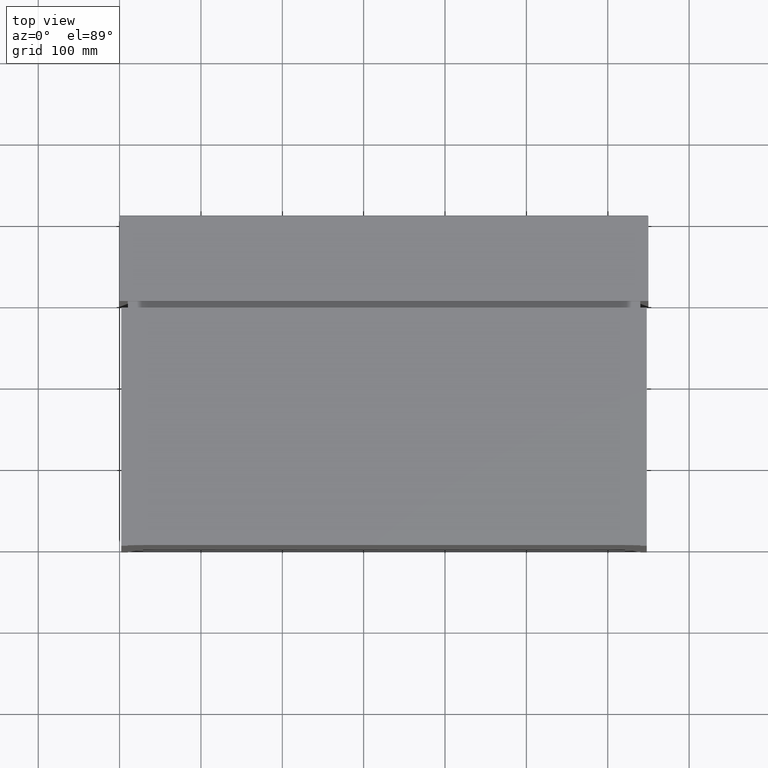
[diagram: clean part render]
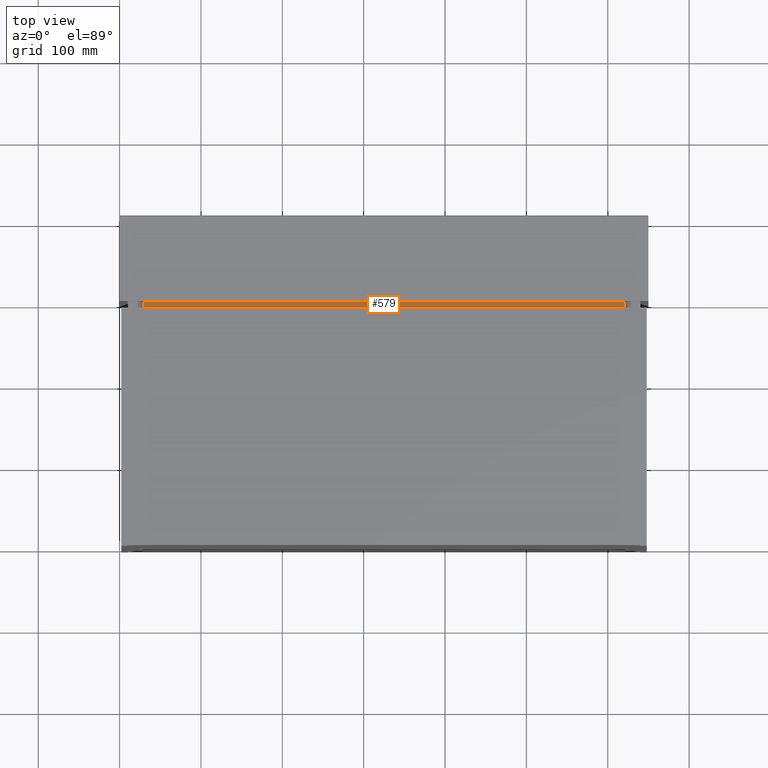
[diagram: same view with one face highlighted and labeled with its STEP entity id]
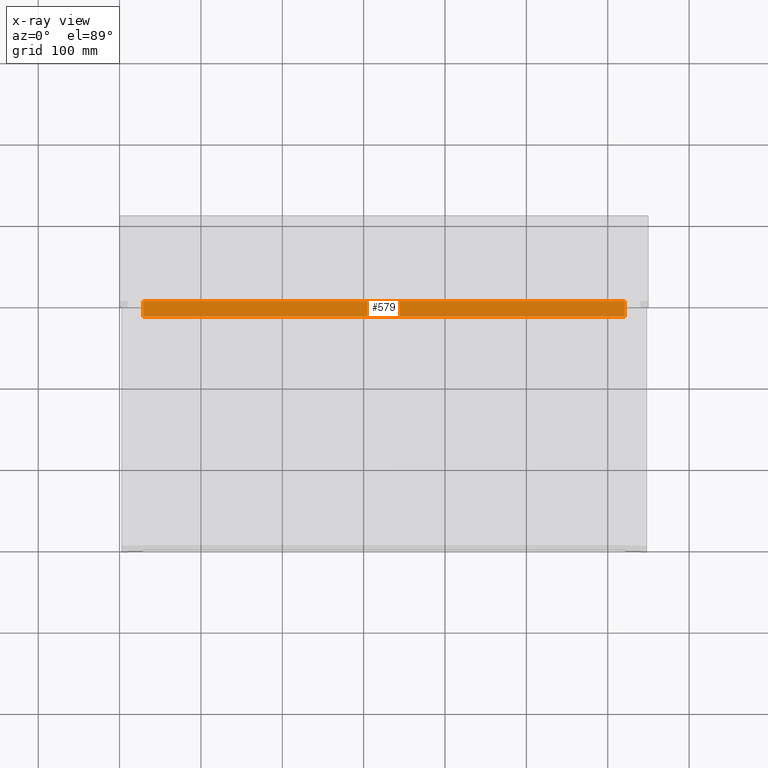
[diagram: x-ray of the same camera — body ghosted, the highlighted face saturated]
A machine part, top view. The second image highlights one B-rep face of the part: STEP entity #579.
The next image is the same camera in x-ray: the body ghosted, the highlighted face saturated — about 0% of this face is hidden behind the body in this view.
In plain terms, the highlighted planar face has unit normal (0, 0, 1).
Its self-contained STEP definition (entity closure, byte-faithful):
#389 = EDGE_CURVE ( 'NONE', #5694, #12856, #9239, .T. ) ;
#579 = ADVANCED_FACE ( 'NONE', ( #3124 ), #7552, .T. ) ;
#729 = ORIENTED_EDGE ( 'NONE', *, *, #9283, .T. ) ;
#1068 = EDGE_LOOP ( 'NONE', ( #9767, #13605, #3937, #729 ) ) ;
#1080 = LINE ( 'NONE', #4431, #3862 ) ;
#1266 = CARTESIAN_POINT ( 'NONE',  ( 621.0000000000001137, 281.0000000000000000, -16.00000000000000000 ) ) ;
#2036 = DIRECTION ( 'NONE',  ( 0.0000000000000000000, 0.0000000000000000000, 1.000000000000000000 ) ) ;
#2379 = CARTESIAN_POINT ( 'NONE',  ( 29.00000000000002487, 281.0000000000000000, -16.00000000000000000 ) ) ;
#3124 = FACE_OUTER_BOUND ( 'NONE', #1068, .T. ) ;
#3715 = DIRECTION ( 'NONE',  ( 1.000000000000000000, 0.0000000000000000000, 0.0000000000000000000 ) ) ;
#3862 = VECTOR ( 'NONE', #8856, 1000.000000000000000 ) ;
#3921 = CARTESIAN_POINT ( 'NONE',  ( 621.0000000000001137, 300.0000000000000000, -16.00000000000000000 ) ) ;
#3937 = ORIENTED_EDGE ( 'NONE', *, *, #7760, .T. ) ;
#4098 = VECTOR ( 'NONE', #8885, 1000.000000000000000 ) ;
#4261 = CARTESIAN_POINT ( 'NONE',  ( 621.0000000000001137, 281.0000000000000000, -16.00000000000000000 ) ) ;
#4431 = CARTESIAN_POINT ( 'NONE',  ( 29.00000000000002487, 281.0000000000000000, -16.00000000000000000 ) ) ;
#4945 = AXIS2_PLACEMENT_3D ( 'NONE', #11971, #2036, #6469 ) ;
#5428 = CARTESIAN_POINT ( 'NONE',  ( 29.00000000000002487, 300.0000000000000000, -16.00000000000000000 ) ) ;
#5694 = VERTEX_POINT ( 'NONE', #5428 ) ;
#6469 = DIRECTION ( 'NONE',  ( 1.000000000000000000, 0.0000000000000000000, -0.0000000000000000000 ) ) ;
#6804 = DIRECTION ( 'NONE',  ( 1.000000000000000000, 0.0000000000000000000, 0.0000000000000000000 ) ) ;
#7552 = PLANE ( 'NONE',  #4945 ) ;
#7760 = EDGE_CURVE ( 'NONE', #9269, #9824, #12314, .T. ) ;
#8856 = DIRECTION ( 'NONE',  ( 0.0000000000000000000, 1.000000000000000000, 0.0000000000000000000 ) ) ;
#8885 = DIRECTION ( 'NONE',  ( 0.0000000000000000000, 1.000000000000000000, 0.0000000000000000000 ) ) ;
#9239 = LINE ( 'NONE', #13649, #10290 ) ;
#9269 = VERTEX_POINT ( 'NONE', #9777 ) ;
#9283 = EDGE_CURVE ( 'NONE', #9824, #12856, #14200, .T. ) ;
#9767 = ORIENTED_EDGE ( 'NONE', *, *, #389, .F. ) ;
#9777 = CARTESIAN_POINT ( 'NONE',  ( 29.00000000000002487, 281.0000000000000000, -16.00000000000000000 ) ) ;
#9824 = VERTEX_POINT ( 'NONE', #1266 ) ;
#10290 = VECTOR ( 'NONE', #3715, 1000.000000000000000 ) ;
#11762 = EDGE_CURVE ( 'NONE', #9269, #5694, #1080, .T. ) ;
#11971 = CARTESIAN_POINT ( 'NONE',  ( 29.00000000000002487, 281.0000000000000000, -16.00000000000000000 ) ) ;
#12314 = LINE ( 'NONE', #2379, #12416 ) ;
#12416 = VECTOR ( 'NONE', #6804, 1000.000000000000000 ) ;
#12856 = VERTEX_POINT ( 'NONE', #3921 ) ;
#13605 = ORIENTED_EDGE ( 'NONE', *, *, #11762, .F. ) ;
#13649 = CARTESIAN_POINT ( 'NONE',  ( 29.00000000000002487, 300.0000000000000000, -16.00000000000000000 ) ) ;
#14200 = LINE ( 'NONE', #4261, #4098 ) ;